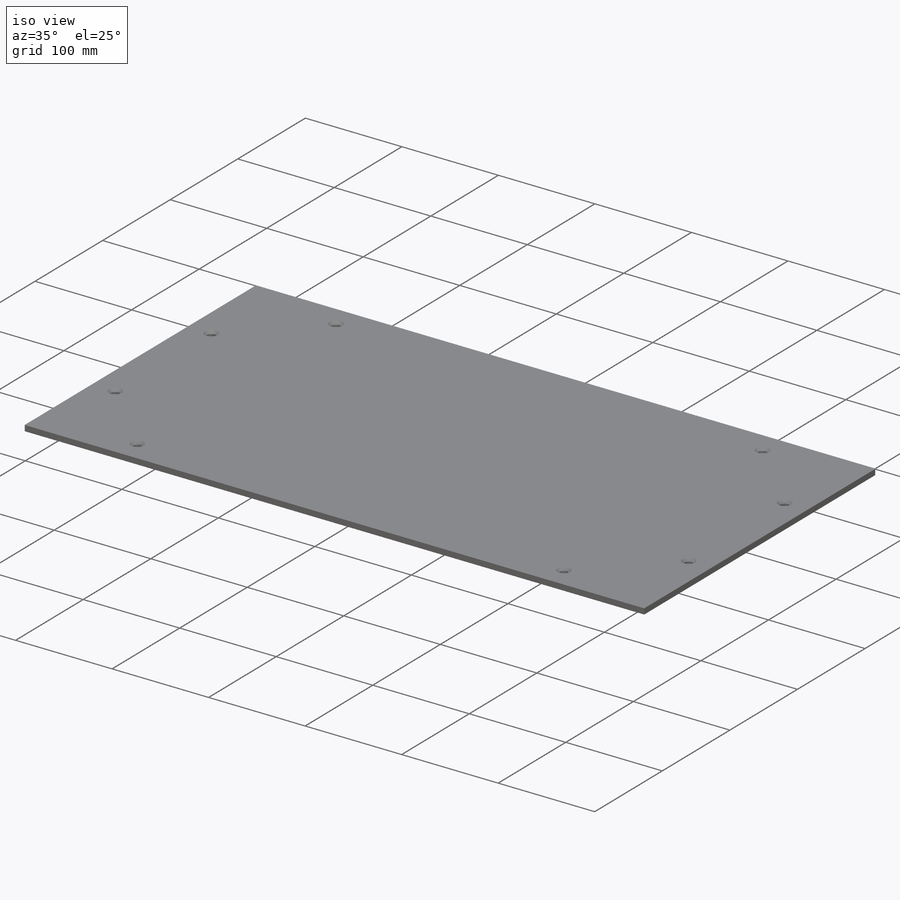
[diagram: iso view]
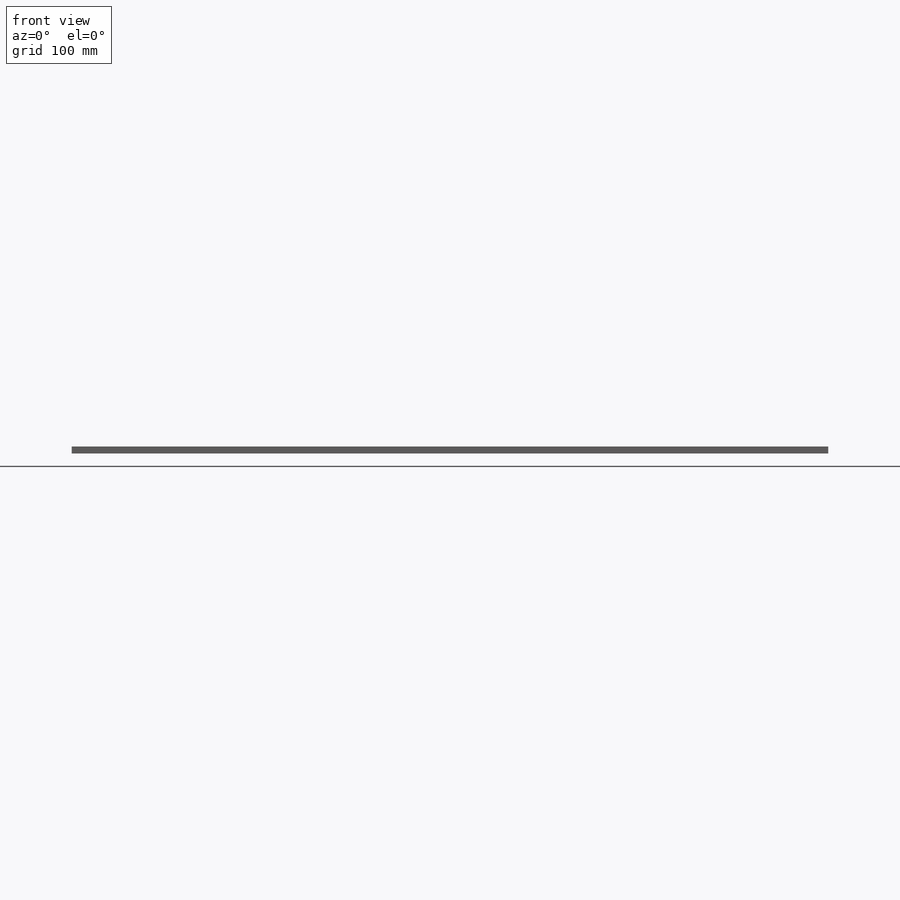
[diagram: front view]
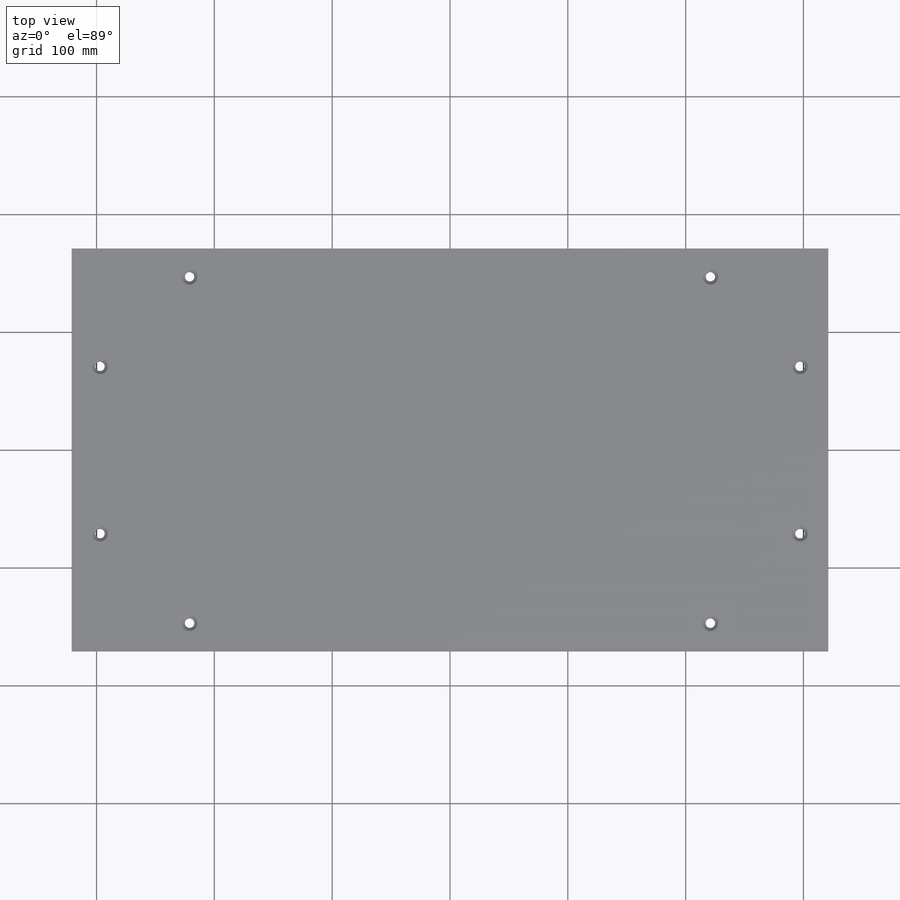
[diagram: top view]
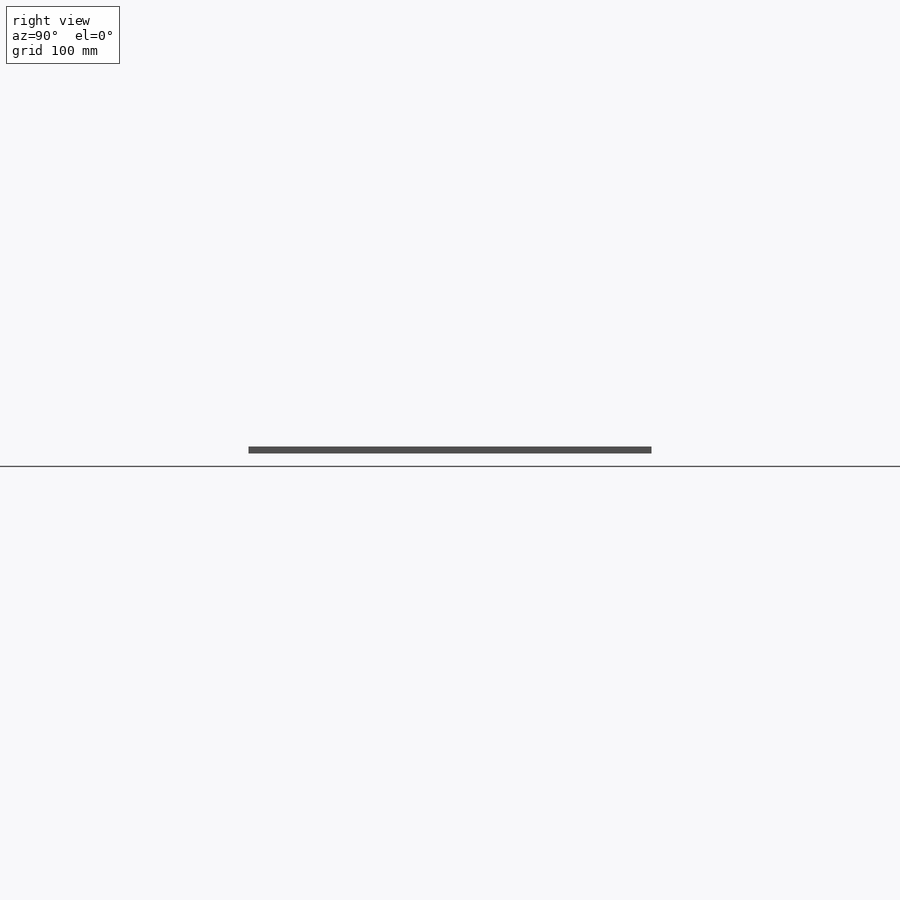
[diagram: right view]
SOLIDWORKS PART (.sldprt)
format: sldprt  version: not decoded by parser v0  size: 1,120,768 bytes
history: native  units: mm
features: sketch x2, material x1, extrude x1, cut_extrude x1, chamfer x1, fillet x1 + 1 further entry (+12 scaffold rows collapsed)
feature tree (20):
  scaffold x12  (default folders/planes/origin — collapsed)
  material  "Glass"
  "Design Table"
  sketch  "Sketch1"  dims[Largura=342.0mm Profundidade=342.0mm]
  extrude  "Boss-Extrude1"  Depth=6mm
  sketch  "Sketch2"  dims[D1=8.0mm D2=24.0mm D3=100.0mm D4=24.0mm D5=100.0mm]
  cut_extrude  "Cut-Extrude1"  [1 undecoded]
  chamfer  "Chamfer1"  Distance=2.75mm Angle=45deg
  fillet  "Fillet1"  Radius=0.2mm
decode coverage: 5 of 6 modeling features carry decoded parameters; 1 rows unclassified (native names shown)
note: 1 parameter value undecoded
note: suppression state not decoded; provenance and decode notes live in map.json
